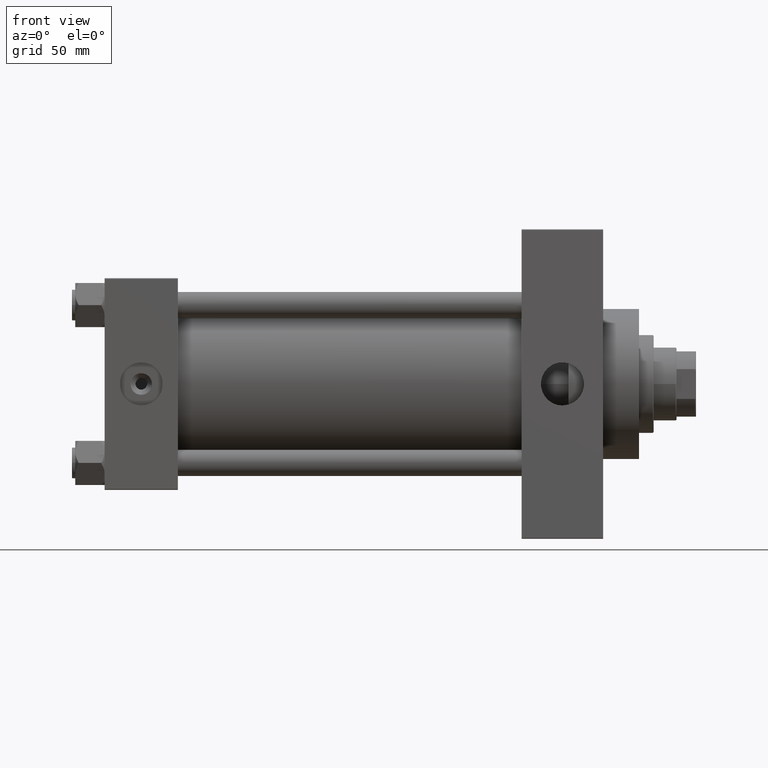
[diagram: clean part render]
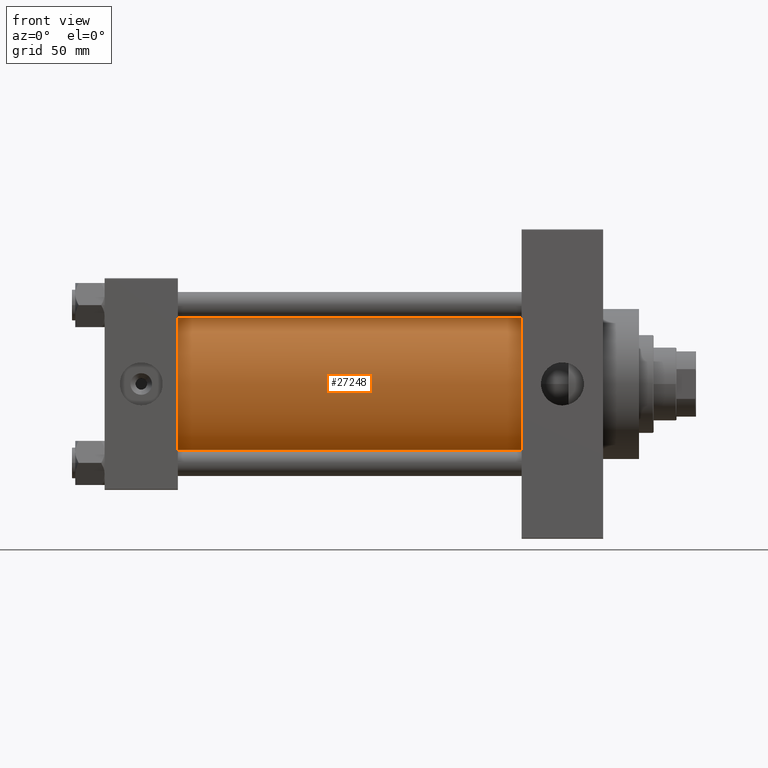
[diagram: same view with one face highlighted and labeled with its STEP entity id]
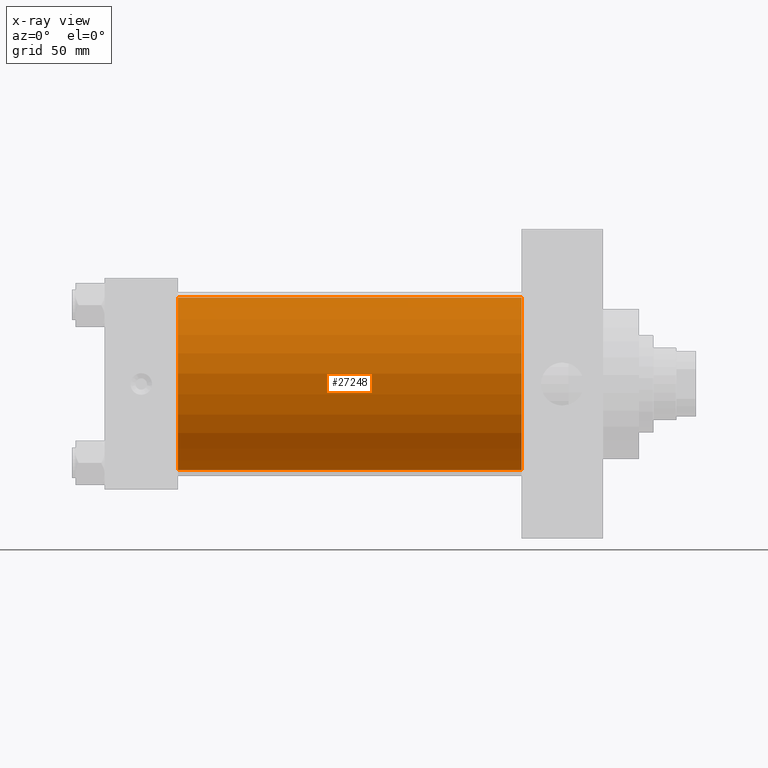
[diagram: x-ray of the same camera — body ghosted, the highlighted face saturated]
A machine part, front view. The second image highlights one B-rep face of the part: STEP entity #27248.
The next image is the same camera in x-ray: the body ghosted, the highlighted face saturated — about 1% of this face is hidden behind the body in this view.
In plain terms, the highlighted cylindrical surface (partial cylindrical patch) has radius 53 mm, axis along (-1, -0, -0).
Its self-contained STEP definition (entity closure, byte-faithful):
#763 = DIRECTION ( 'NONE',  ( 0.000000000000000000, 0.000000000000000000, -1.000000000000000000 ) ) ;
#937 = EDGE_CURVE ( 'NONE', #46772, #2238, #15848, .T. ) ;
#1891 = DIRECTION ( 'NONE',  ( -1.000000000000000000, -0.000000000000000000, -0.000000000000000000 ) ) ;
#2082 = AXIS2_PLACEMENT_3D ( 'NONE', #42717, #35370, #763 ) ;
#2145 = VECTOR ( 'NONE', #26098, 1000.000000000000000 ) ;
#2238 = VERTEX_POINT ( 'NONE', #2300 ) ;
#2300 = CARTESIAN_POINT ( 'NONE',  ( 256.0000000000000000, 3.888542821515762466E-15, -53.00000000000000711 ) ) ;
#2888 = VERTEX_POINT ( 'NONE', #37290 ) ;
#4330 = DIRECTION ( 'NONE',  ( 0.000000000000000000, 0.000000000000000000, 1.000000000000000000 ) ) ;
#8290 = EDGE_CURVE ( 'NONE', #2888, #42873, #15423, .T. ) ;
#9401 = CARTESIAN_POINT ( 'NONE',  ( 44.99999999999998579, 3.888542821515762466E-15, -53.00000000000000711 ) ) ;
#9526 = AXIS2_PLACEMENT_3D ( 'NONE', #15700, #38189, #4330 ) ;
#12222 = AXIS2_PLACEMENT_3D ( 'NONE', #36409, #17201, #13418 ) ;
#13418 = DIRECTION ( 'NONE',  ( 0.000000000000000000, 0.000000000000000000, 1.000000000000000000 ) ) ;
#13512 = LINE ( 'NONE', #32481, #20056 ) ;
#15423 = CIRCLE ( 'NONE', #12222, 53.00000000000000711 ) ;
#15700 = CARTESIAN_POINT ( 'NONE',  ( 256.0000000000000000, -2.602085213965210642E-15, 0.000000000000000000 ) ) ;
#15848 = CIRCLE ( 'NONE', #2082, 53.00000000000000711 ) ;
#16849 = ORIENTED_EDGE ( 'NONE', *, *, #8290, .T. ) ;
#17201 = DIRECTION ( 'NONE',  ( 1.000000000000000000, -0.000000000000000000, 0.000000000000000000 ) ) ;
#19557 = ORIENTED_EDGE ( 'NONE', *, *, #32182, .F. ) ;
#20056 = VECTOR ( 'NONE', #1891, 1000.000000000000000 ) ;
#26098 = DIRECTION ( 'NONE',  ( -1.000000000000000000, -0.000000000000000000, -0.000000000000000000 ) ) ;
#27073 = FACE_OUTER_BOUND ( 'NONE', #31597, .T. ) ;
#27248 = ADVANCED_FACE ( 'NONE', ( #27073 ), #42499, .T. ) ;
#28125 = EDGE_CURVE ( 'NONE', #46772, #2888, #13512, .T. ) ;
#29378 = CARTESIAN_POINT ( 'NONE',  ( 256.0000000000000000, 3.888542821515762466E-15, -53.00000000000000711 ) ) ;
#29626 = LINE ( 'NONE', #29378, #2145 ) ;
#30533 = ORIENTED_EDGE ( 'NONE', *, *, #28125, .T. ) ;
#31597 = EDGE_LOOP ( 'NONE', ( #19557, #44115, #30533, #16849 ) ) ;
#32182 = EDGE_CURVE ( 'NONE', #2238, #42873, #29626, .T. ) ;
#32481 = CARTESIAN_POINT ( 'NONE',  ( 256.0000000000000000, -2.602085213965210642E-15, 53.00000000000000711 ) ) ;
#35370 = DIRECTION ( 'NONE',  ( 1.000000000000000000, 0.000000000000000000, 0.000000000000000000 ) ) ;
#36409 = CARTESIAN_POINT ( 'NONE',  ( 44.99999999999998579, -2.602085213965210642E-15, 0.000000000000000000 ) ) ;
#37290 = CARTESIAN_POINT ( 'NONE',  ( 44.99999999999998579, -2.602085213965210642E-15, 53.00000000000000711 ) ) ;
#38189 = DIRECTION ( 'NONE',  ( -1.000000000000000000, -0.000000000000000000, -0.000000000000000000 ) ) ;
#42499 = CYLINDRICAL_SURFACE ( 'NONE', #9526, 53.00000000000000711 ) ;
#42717 = CARTESIAN_POINT ( 'NONE',  ( 256.0000000000000000, -2.602085213965210642E-15, 0.000000000000000000 ) ) ;
#42873 = VERTEX_POINT ( 'NONE', #9401 ) ;
#44115 = ORIENTED_EDGE ( 'NONE', *, *, #937, .F. ) ;
#46772 = VERTEX_POINT ( 'NONE', #47543 ) ;
#47543 = CARTESIAN_POINT ( 'NONE',  ( 256.0000000000000000, -2.602085213965210642E-15, 53.00000000000000711 ) ) ;